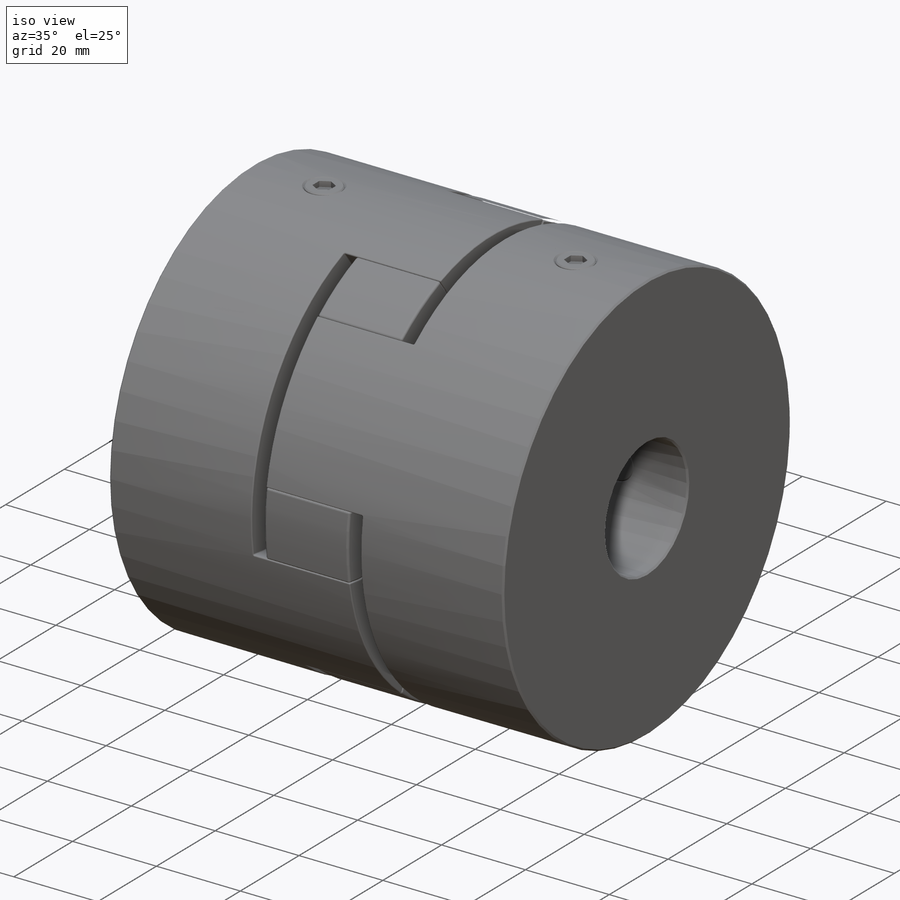
[diagram: iso view]
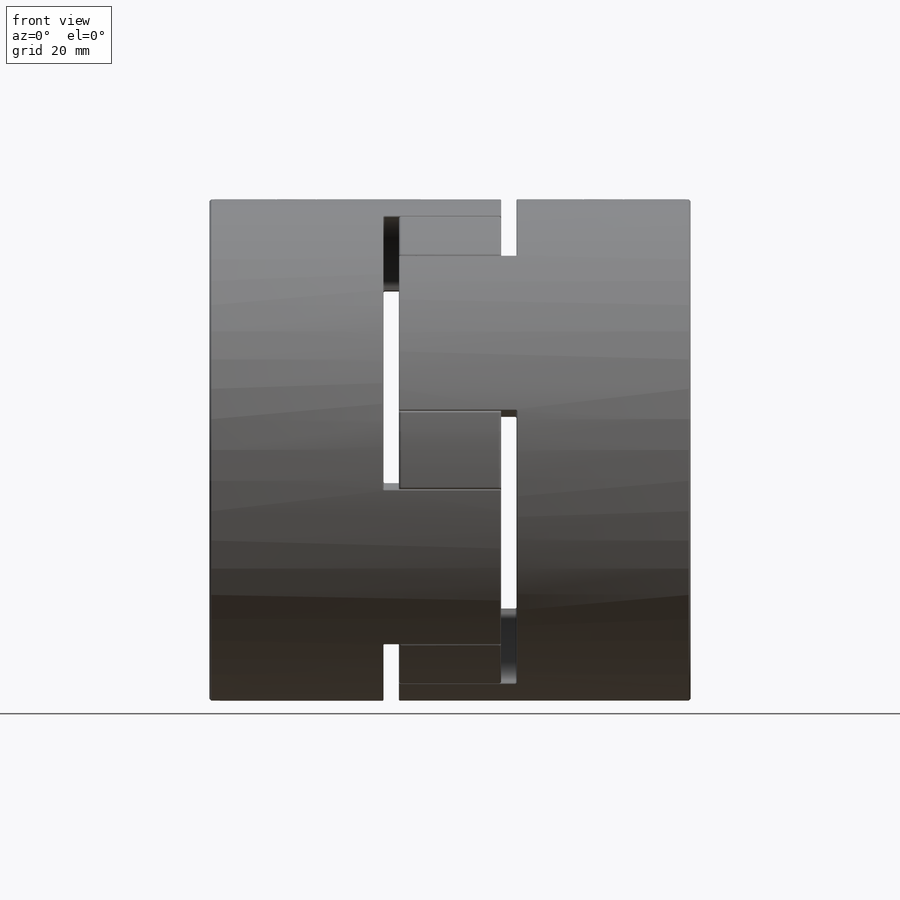
[diagram: front view]
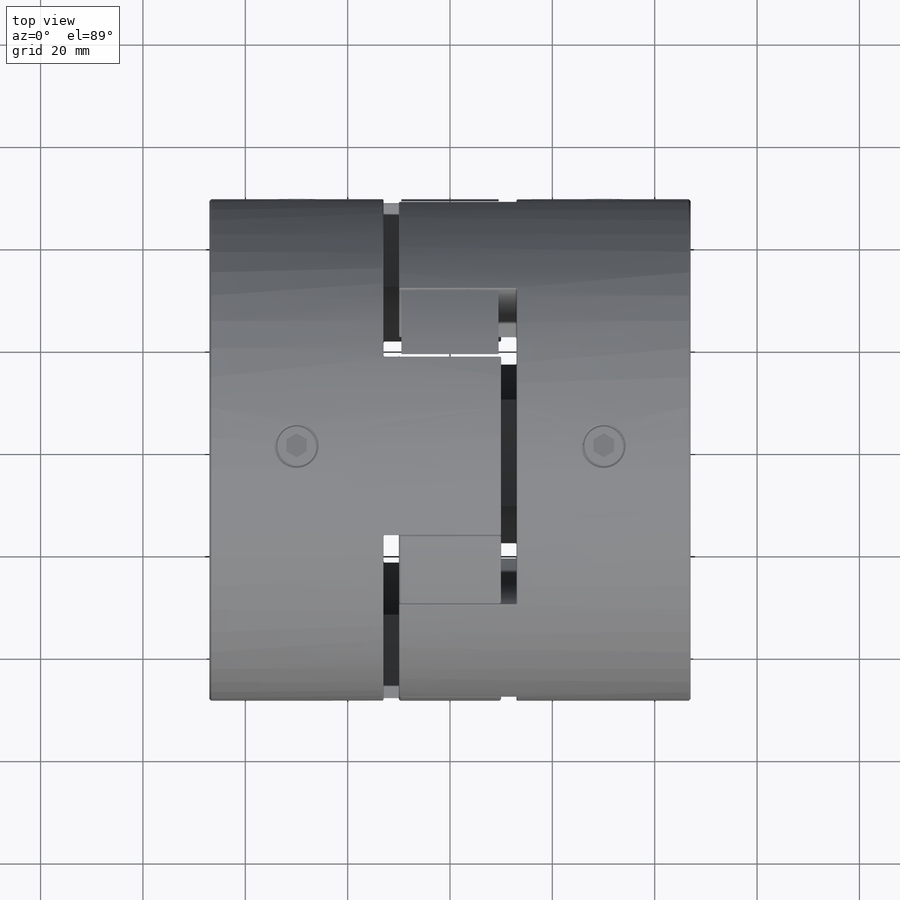
[diagram: top view]
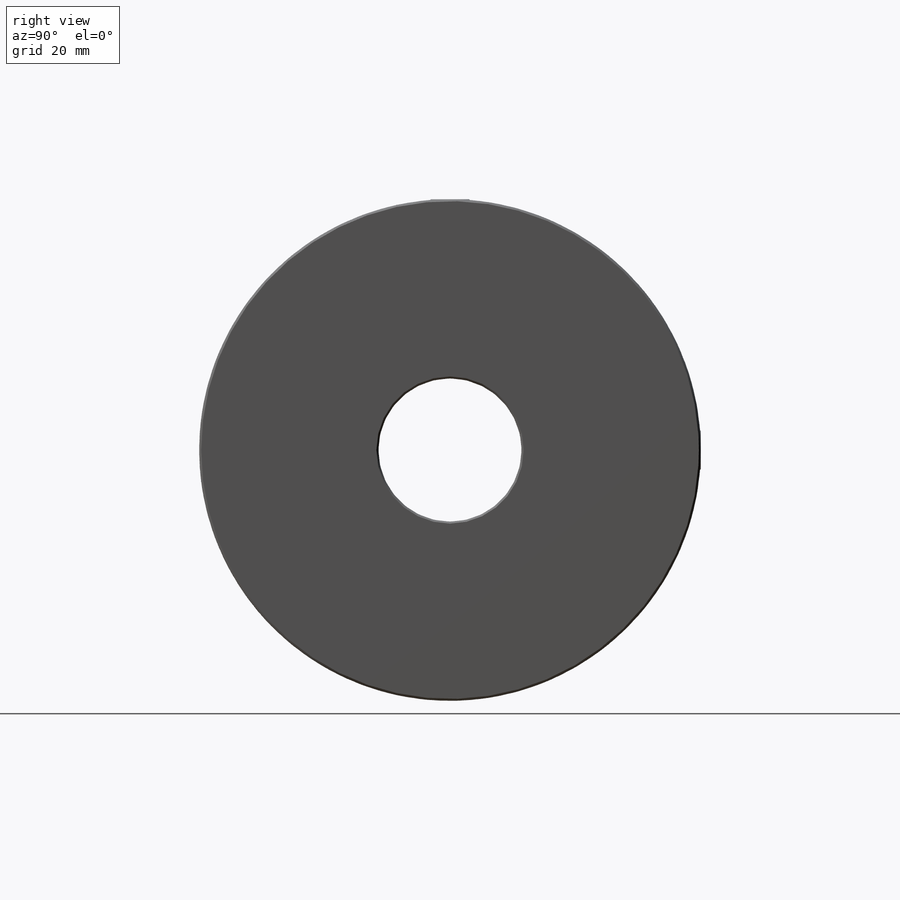
[diagram: right view]
SOLIDWORKS PART (.sldprt)
format: sldprt  version: not decoded by parser v0  size: 1,244,672 bytes
history: native  units: mm
features: sketch x10, cut_extrude x5, extrude x4, plane x3, fillet x3, pattern_circular x2, chamfer x2, mirror x2, material x1, revolve x1 + 1 further entry (+17 scaffold rows collapsed)
feature tree (51):
  scaffold x17  (default folders/planes/origin — collapsed)
  material  "Material <not specified>"
  "Design Table"
  sketch  "Sketch1"  dims[dim D=98.0mm]
  extrude  "Boss-Extrude1"  Depth=94mm dim L=94mm
  sketch  "Sketch2"  dims[dim d2=28.0mm]
  cut_extrude  "Cut-Extrude1"  [1 undecoded]
  sketch  "Sketch8"  dims[Dim M=8.0mm Dim L3=17.0mm]
  cut_extrude  "Cut-Extrude4"  [1 undecoded]
  pattern_circular  "CirPattern2"  Count=2 Angle=90deg
  chamfer  "Chamfer1"  Distance=0.381mm Angle=45deg
  sketch  "Sketch5"
  cut_extrude  "Cut-Extrude2"  Depth=2.54mm
  sketch  "Sketch6"
  revolve  "Revolve1"  Angle=360deg
  chamfer  "Chamfer2"  Distance=0.254mm Angle=45deg
  sketch  "Sketch7"  dims[Dim Hex Key=4.0mm]
  cut_extrude  "Cut-Extrude3"  Depth=1.27mm
  mirror  "Mirror1"
  pattern_circular  "CirPattern1"  Count=2 Angle=90deg
  plane  "L1"  Offset=34mm Dim L1=34mm
  sketch  "Sketch9"
  cut_extrude  "Cut-Extrude5"  [1 undecoded]
  mirror  "Mirror5"
  plane  "S"  Offset=3mm Dim S=3mm
  plane  "L2"  Offset=20mm Dim L2=20mm
  sketch  "Sketch10"  dims[D1=3.0 D2=3.0]
  extrude  "Boss-Extrude2"  [1 undecoded]
  sketch  "Sketch11"  dims[D1=0.0mm D2=2.0 D3=3.0]
  extrude  "Boss-Extrude3"  [1 undecoded]
  sketch  "Sketch12"  dims[D2=~3.08671mm D1=6.0]
  extrude  "Boss-Extrude4"  [1 undecoded]
  fillet  "Fillet1"  Radius=0.25mm
  fillet  "Fillet2"  Radius=0.5mm
  fillet  "Fillet3"  Radius=0.25mm
decode coverage: 18 of 29 modeling features carry decoded parameters; 1 rows unclassified (native names shown)
note: ~ marks probable driven/reference dimensions
note: 6 parameter values undecoded
summary: no parameter record found for 6 features
note: suppression state not decoded; provenance and decode notes live in map.json
